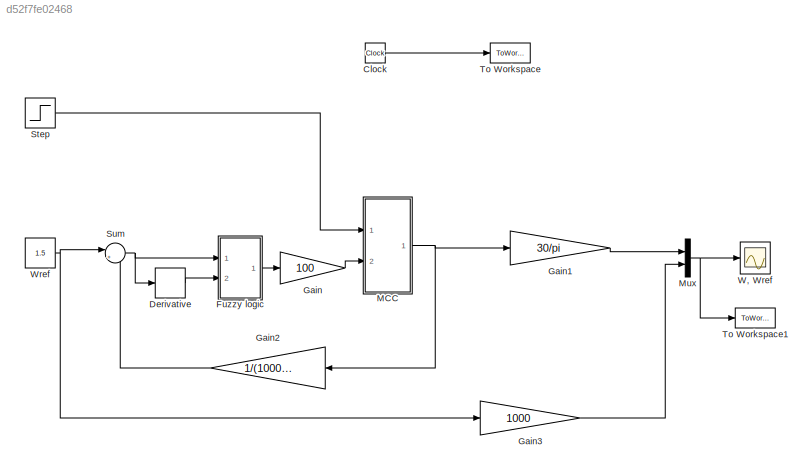
MODEL slx_d52f7fe02468
KIND model
CONFIG AbsTol = auto
CONFIG FixedStep = 0.0001
CONFIG MaxStep = auto
CONFIG MinStep = auto
CONFIG RelTol = 1e-3
CONFIG SampleTimeConstraint = Unconstrained
CONFIG Solver = ode5
CONFIG SolverMode = Auto
CONFIG SolverName = ode5
CONFIG StartTime = 0.0
CONFIG StopTime = 2
BLOCK [Clock] Clock
BLOCK [Derivative] Derivative
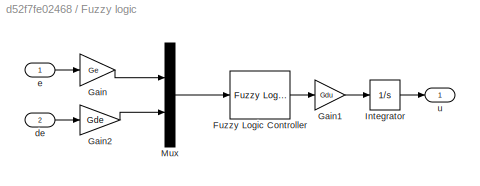
BLOCK [SubSystem] Fuzzy logic
  Ports = [2, 1]
  RequestExecContextInheritance = off
BLOCK [Reference] Fuzzy logic/Fuzzy Logic Controller  REF=fuzblock/Fuzzy Logic   (lib defined in mdl_858b3b3e7478)
Controller
  Ports = [1, 1]
  SourceBlock = fuzblock/Fuzzy Logic \nController
  SourceType = FIS
  fis = 'CLF01'
BLOCK [Gain] Fuzzy logic/Gain
  Gain = Ge
  OutDataTypeStr = Inherit: Inherit via internal rule
  ParamDataTypeStr = Inherit: Inherit via internal rule
  SaturateOnIntegerOverflow = off
BLOCK [Gain] Fuzzy logic/Gain1
  Gain = Gdu
  OutDataTypeStr = Inherit: Inherit via internal rule
  ParamDataTypeStr = Inherit: Inherit via internal rule
  SaturateOnIntegerOverflow = off
BLOCK [Gain] Fuzzy logic/Gain2
  Gain = Gde
  OutDataTypeStr = Inherit: Inherit via internal rule
  ParamDataTypeStr = Inherit: Inherit via internal rule
  SaturateOnIntegerOverflow = off
BLOCK [Integrator] Fuzzy logic/Integrator
  Ports = [1, 1]
BLOCK [Mux] Fuzzy logic/Mux
  DisplayOption = bar
  Inputs = 2
  Ports = [2, 1]
BLOCK [Inport] Fuzzy logic/de
  IconDisplay = Port number
  Port = 2
BLOCK [Inport] Fuzzy logic/e
  IconDisplay = Port number
BLOCK [Outport] Fuzzy logic/u
  IconDisplay = Port number
BLOCK [Gain] Gain
  Gain = 100
  OutDataTypeStr = Inherit: Inherit via internal rule
  ParamDataTypeStr = Inherit: Inherit via internal rule
  SaturateOnIntegerOverflow = off
BLOCK [Gain] Gain1
  Gain = 30/pi
  OutDataTypeStr = Inherit: Inherit via internal rule
  ParamDataTypeStr = Inherit: Inherit via internal rule
  SaturateOnIntegerOverflow = off
BLOCK [Gain] Gain2
  Gain = 1/(1000*pi/30)
  OutDataTypeStr = Inherit: Inherit via internal rule
  ParamDataTypeStr = Inherit: Inherit via internal rule
  SaturateOnIntegerOverflow = off
BLOCK [Gain] Gain3
  Gain = 1000
  OutDataTypeStr = Inherit: Inherit via internal rule
  ParamDataTypeStr = Inherit: Inherit via internal rule
  SaturateOnIntegerOverflow = off
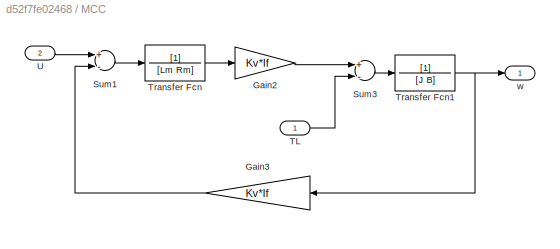
BLOCK [SubSystem] MCC
  Ports = [2, 1]
  RequestExecContextInheritance = off
BLOCK [Gain] MCC/Gain2
  Gain = Kv*If
  OutDataTypeStr = Inherit: Inherit via internal rule
  ParamDataTypeStr = Inherit: Inherit via internal rule
  SaturateOnIntegerOverflow = off
BLOCK [Gain] MCC/Gain3
  Gain = Kv*If
  OutDataTypeStr = Inherit: Inherit via internal rule
  ParamDataTypeStr = Inherit: Inherit via internal rule
  SaturateOnIntegerOverflow = off
BLOCK [Sum] MCC/Sum1
  InputSameDT = off
  Inputs = +-
  OutDataTypeStr = Inherit: Inherit via internal rule
  Ports = [2, 1]
  SaturateOnIntegerOverflow = off
BLOCK [Sum] MCC/Sum3
  InputSameDT = off
  Inputs = +-
  OutDataTypeStr = Inherit: Inherit via internal rule
  Ports = [2, 1]
  SaturateOnIntegerOverflow = off
BLOCK [Inport] MCC/TL
  IconDisplay = Port number
BLOCK [TransferFcn] MCC/Transfer Fcn
  Denominator = [Lm Rm]
BLOCK [TransferFcn] MCC/Transfer Fcn1
  Denominator = [J B]
BLOCK [Inport] MCC/U
  IconDisplay = Port number
  Port = 2
BLOCK [Outport] MCC/w
  IconDisplay = Port number
BLOCK [Mux] Mux
  DisplayOption = bar
  Inputs = 2
  Ports = [2, 1]
BLOCK [Step] Step
  After = 12
  Before = 10
  SampleTime = 0
BLOCK [Sum] Sum
  IconShape = round
  InputSameDT = off
  Inputs = |+-
  OutDataTypeStr = Inherit: Inherit via internal rule
  Ports = [2, 1]
  SaturateOnIntegerOverflow = off
BLOCK [ToWorkspace] To Workspace
  MaxDataPoints = inf
  Ports = [1]
  SampleTime = -1
  VariableName = t
BLOCK [ToWorkspace] To Workspace1
  MaxDataPoints = inf
  Ports = [1]
  SampleTime = -1
  VariableName = data
BLOCK [Scope] W, Wref
  DataFormat = StructureWithTime
  Floating = off
  LimitDataPoints = off
  NumInputPorts = 1
  Ports = [1]
  SampleTime = 0
BLOCK [Constant] Wref
  Value = 1.5
LINE Clock:1 -> To Workspace:1
LINE Derivative:1 -> Fuzzy logic:2
LINE Fuzzy logic/Fuzzy Logic Controller:1 -> Fuzzy logic/Gain1:1
LINE Fuzzy logic/Gain1:1 -> Fuzzy logic/Integrator:1
LINE Fuzzy logic/Gain2:1 -> Fuzzy logic/Mux:2
LINE Fuzzy logic/Gain:1 -> Fuzzy logic/Mux:1
LINE Fuzzy logic/Integrator:1 -> Fuzzy logic/u:1
LINE Fuzzy logic/Mux:1 -> Fuzzy logic/Fuzzy Logic Controller:1
LINE Fuzzy logic/de:1 -> Fuzzy logic/Gain2:1
LINE Fuzzy logic/e:1 -> Fuzzy logic/Gain:1
LINE Fuzzy logic:1 -> Gain:1
LINE Gain1:1 -> Mux:1
LINE Gain2:1 -> Sum:2
LINE Gain3:1 -> Mux:2
LINE Gain:1 -> MCC:2
LINE MCC/Gain2:1 -> MCC/Sum3:1
LINE MCC/Gain3:1 -> MCC/Sum1:2
LINE MCC/Sum1:1 -> MCC/Transfer Fcn:1
LINE MCC/Sum3:1 -> MCC/Transfer Fcn1:1
LINE MCC/TL:1 -> MCC/Sum3:2
NET MCC/Transfer Fcn1:1 -> MCC/Gain3:1, MCC/w:1
LINE MCC/Transfer Fcn:1 -> MCC/Gain2:1
LINE MCC/U:1 -> MCC/Sum1:1
NET MCC:1 -> Gain1:1, Gain2:1
NET Mux:1 -> To Workspace1:1, W, Wref:1
LINE Step:1 -> MCC:1
NET Sum:1 -> Derivative:1, Fuzzy logic:1
NET Wref:1 -> Gain3:1, Sum:1
note: NET lines group one-source signal fan-out (src -> all destinations, sorted); 1:1 wires keep LINE
